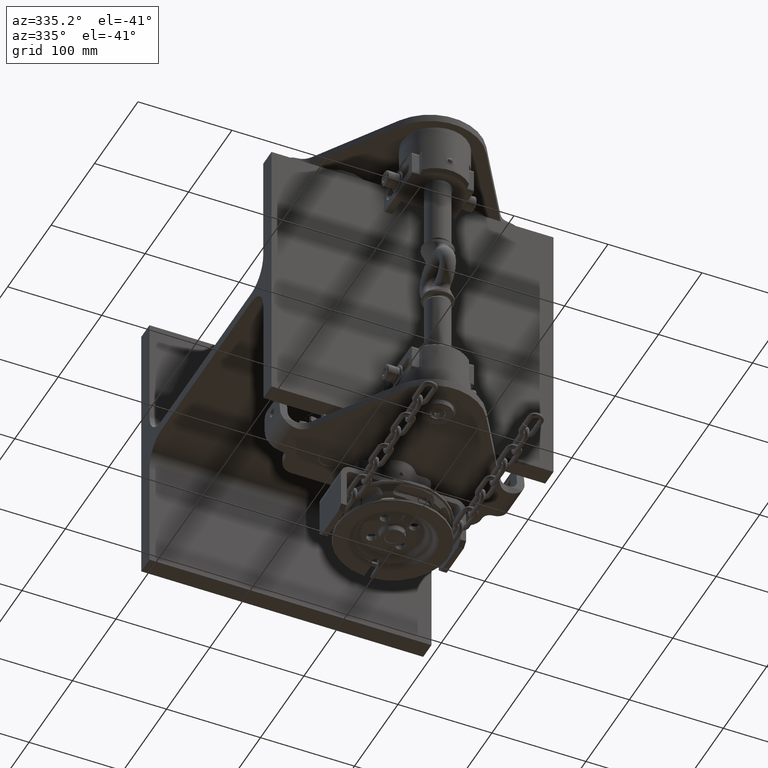
[diagram: clean part render]
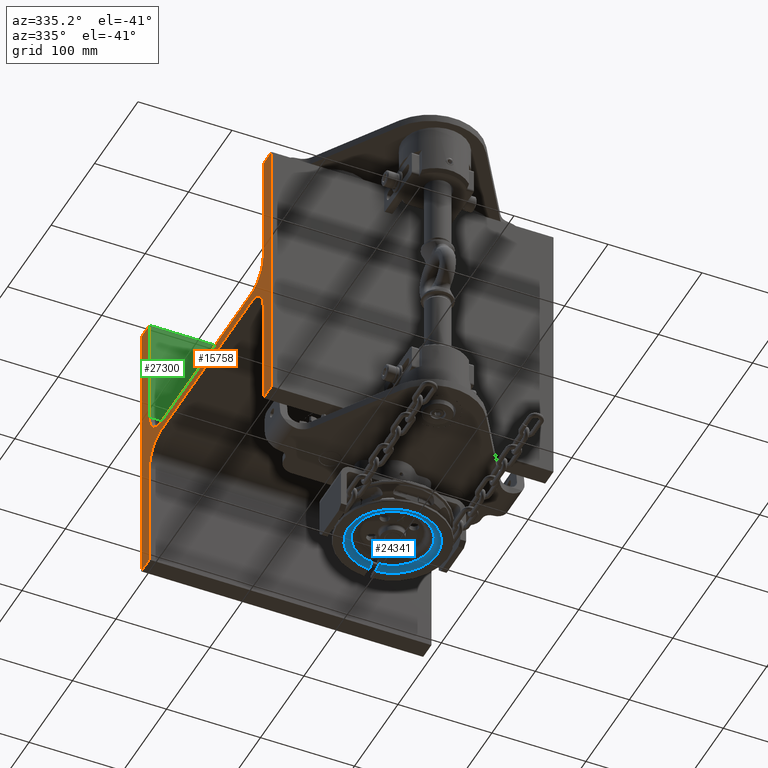
[diagram: same view with three faces highlighted in distinct colors, each labeled with its STEP entity id]
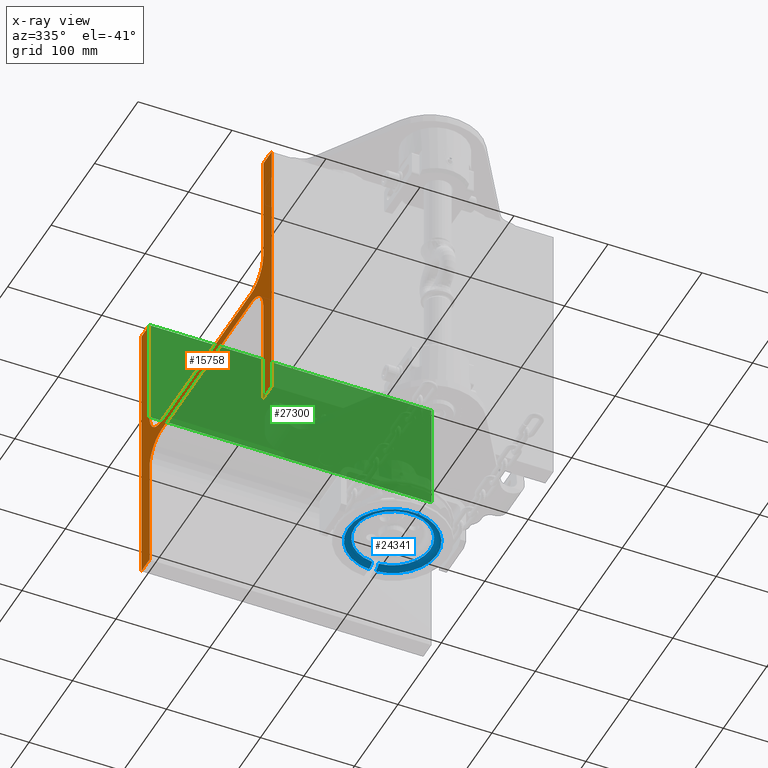
[diagram: x-ray of the same camera — body ghosted, the three highlighted faces saturated]
A machine part, auxiliary view with three faces highlighted in distinct colors.
The next image is the same camera in x-ray (body ghosted, the three faces saturated) — at least one of them is partly hidden behind the body in this view.
Their STEP definitions:

[orange] entity #15758 — the highlighted planar face has unit normal (1, -0, -0).
#482 = EDGE_CURVE ( 'NONE', #10572, #35718, #13258, .T. ) ;
#1298 = ORIENTED_EDGE ( 'NONE', *, *, #38999, .F. ) ;
#1343 = ORIENTED_EDGE ( 'NONE', *, *, #36289, .F. ) ;
#2406 = CARTESIAN_POINT ( 'NONE',  ( -150.0000000000000300, -103.9999999999986200, -5.499999999999627000 ) ) ;
#2486 = VERTEX_POINT ( 'NONE', #16845 ) ;
#2632 = CARTESIAN_POINT ( 'NONE',  ( -150.0000000000000900, -149.9999999999994000, -149.9999999999994000 ) ) ;
#3218 = VECTOR ( 'NONE', #12785, 1000.000000000000000 ) ;
#3504 = EDGE_CURVE ( 'NONE', #15428, #32175, #5290, .T. ) ;
#3967 = CARTESIAN_POINT ( 'NONE',  ( -149.9999999999999700, 131.0000000000017900, 149.9999999999993700 ) ) ;
#4031 = AXIS2_PLACEMENT_3D ( 'NONE', #26444, #14093, #42391 ) ;
#4104 = LINE ( 'NONE', #29744, #33679 ) ;
#4124 = EDGE_CURVE ( 'NONE', #29044, #29897, #42347, .T. ) ;
#4298 = VECTOR ( 'NONE', #7662, 1000.000000000000000 ) ;
#5222 = ORIENTED_EDGE ( 'NONE', *, *, #3504, .T. ) ;
#5290 = LINE ( 'NONE', #47078, #26010 ) ;
#5926 = EDGE_CURVE ( 'NONE', #45658, #29897, #33301, .T. ) ;
#6052 = DIRECTION ( 'NONE',  ( 3.330669073875467200E-016, 4.187093642028518100E-015, 1.000000000000000000 ) ) ;
#6309 = CARTESIAN_POINT ( 'NONE',  ( -149.9999999999999400, 131.0000000000011700, 32.49999999999940300 ) ) ;
#6383 = CARTESIAN_POINT ( 'NONE',  ( -149.9999999999999700, 150.0000000000017900, 149.9999999999992900 ) ) ;
#6445 = FACE_OUTER_BOUND ( 'NONE', #52363, .T. ) ;
#7247 = EDGE_CURVE ( 'NONE', #20112, #31456, #25494, .T. ) ;
#7352 = VERTEX_POINT ( 'NONE', #6383 ) ;
#7402 = DIRECTION ( 'NONE',  ( 3.328978489157237800E-017, 1.000000000000000000, -5.481442494871835100E-015 ) ) ;
#7573 = PLANE ( 'NONE',  #45435 ) ;
#7662 = DIRECTION ( 'NONE',  ( 3.330669073875468100E-016, 5.057445236741889500E-015, 1.000000000000000000 ) ) ;
#7976 = DIRECTION ( 'NONE',  ( 3.328978489157287100E-017, 1.000000000000000000, -4.020622725628217800E-015 ) ) ;
#8247 = DIRECTION ( 'NONE',  ( 1.000000000000000000, -2.645435875969833700E-017, -3.330669073875466700E-016 ) ) ;
#8410 = CARTESIAN_POINT ( 'NONE',  ( -150.0000000000000300, -103.9999999999985900, 32.50000000000036900 ) ) ;
#8526 = VECTOR ( 'NONE', #13096, 1000.000000000000000 ) ;
#8618 = ORIENTED_EDGE ( 'NONE', *, *, #482, .F. ) ;
#8745 = DIRECTION ( 'NONE',  ( -3.330669073875467600E-016, -3.905884120774306700E-015, -1.000000000000000000 ) ) ;
#8972 = ORIENTED_EDGE ( 'NONE', *, *, #16219, .T. ) ;
#10572 = VERTEX_POINT ( 'NONE', #51649 ) ;
#10745 = VECTOR ( 'NONE', #26875, 1000.000000000000000 ) ;
#10749 = AXIS2_PLACEMENT_3D ( 'NONE', #23729, #11550, #39789 ) ;
#11320 = LINE ( 'NONE', #47808, #41008 ) ;
#11550 = DIRECTION ( 'NONE',  ( -1.000000000000000000, 2.645435875969847300E-017, 3.677613769070833000E-016 ) ) ;
#11565 = CARTESIAN_POINT ( 'NONE',  ( -150.0000000000000900, 131.0000000000004500, -150.0000000000005400 ) ) ;
#12120 = EDGE_CURVE ( 'NONE', #45281, #10572, #37697, .T. ) ;
#12785 = DIRECTION ( 'NONE',  ( -3.330669073875467600E-016, -3.905884120774306700E-015, -1.000000000000000000 ) ) ;
#12852 = EDGE_CURVE ( 'NONE', #7352, #47647, #23993, .T. ) ;
#13096 = DIRECTION ( 'NONE',  ( 3.328978489157237800E-017, 1.000000000000000000, -5.481442494871842200E-015 ) ) ;
#13147 = CARTESIAN_POINT ( 'NONE',  ( -149.9999999999999700, -149.9999999999981500, 150.0000000000005700 ) ) ;
#13258 = CIRCLE ( 'NONE', #22796, 26.99999999999999600 ) ;
#14093 = DIRECTION ( 'NONE',  ( -1.000000000000000000, 2.645435875969847300E-017, 3.677613769070833000E-016 ) ) ;
#14352 = ORIENTED_EDGE ( 'NONE', *, *, #46359, .T. ) ;
#14613 = CARTESIAN_POINT ( 'NONE',  ( -150.0000000000000300, -103.9999999999987100, 5.500000000000366800 ) ) ;
#15157 = VECTOR ( 'NONE', #7976, 1000.000000000000000 ) ;
#15428 = VERTEX_POINT ( 'NONE', #49811 ) ;
#15758 = ADVANCED_FACE ( 'NONE', ( #6445 ), #7573, .F. ) ;
#16219 = EDGE_CURVE ( 'NONE', #2486, #7352, #51807, .T. ) ;
#16845 = CARTESIAN_POINT ( 'NONE',  ( -149.9999999999999700, 131.0000000000017900, 149.9999999999993700 ) ) ;
#17581 = ORIENTED_EDGE ( 'NONE', *, *, #7247, .T. ) ;
#17677 = LINE ( 'NONE', #18469, #10745 ) ;
#17678 = CARTESIAN_POINT ( 'NONE',  ( -150.0000000000000900, -130.9999999999993500, -149.9999999999995200 ) ) ;
#18061 = ORIENTED_EDGE ( 'NONE', *, *, #4124, .T. ) ;
#18469 = CARTESIAN_POINT ( 'NONE',  ( -150.0000000000000900, -149.9999999999994000, -149.9999999999994000 ) ) ;
#18486 = CARTESIAN_POINT ( 'NONE',  ( -149.9999999999999400, 131.0000000000011700, 32.49999999999940300 ) ) ;
#19016 = ORIENTED_EDGE ( 'NONE', *, *, #39155, .F. ) ;
#19607 = CARTESIAN_POINT ( 'NONE',  ( -150.0000000000000300, -130.9999999999985800, 32.50000000000048300 ) ) ;
#19930 = CIRCLE ( 'NONE', #23108, 27.00000000000000400 ) ;
#20112 = VERTEX_POINT ( 'NONE', #2632 ) ;
#21751 = LINE ( 'NONE', #29152, #8526 ) ;
#22166 = EDGE_CURVE ( 'NONE', #31456, #15428, #21751, .T. ) ;
#22796 = AXIS2_PLACEMENT_3D ( 'NONE', #28573, #32633, #29797 ) ;
#23108 = AXIS2_PLACEMENT_3D ( 'NONE', #23117, #23652, #35615 ) ;
#23117 = CARTESIAN_POINT ( 'NONE',  ( -150.0000000000000300, -103.9999999999985900, 32.50000000000036900 ) ) ;
#23316 = CARTESIAN_POINT ( 'NONE',  ( -150.0000000000000900, -130.9999999999993500, -149.9999999999995200 ) ) ;
#23652 = DIRECTION ( 'NONE',  ( 1.000000000000000000, -2.645435875969847300E-017, -3.677613769070833000E-016 ) ) ;
#23655 = CARTESIAN_POINT ( 'NONE',  ( -150.0000000000000300, -103.9999999999987100, 5.500000000000366800 ) ) ;
#23729 = CARTESIAN_POINT ( 'NONE',  ( -149.9999999999999400, 104.0000000000012100, 32.49999999999953800 ) ) ;
#23993 = LINE ( 'NONE', #49083, #3218 ) ;
#24035 = EDGE_CURVE ( 'NONE', #43772, #43268, #11320, .T. ) ;
#24694 = ORIENTED_EDGE ( 'NONE', *, *, #39935, .F. ) ;
#25494 = LINE ( 'NONE', #50331, #31149 ) ;
#26010 = VECTOR ( 'NONE', #50962, 1000.000000000000000 ) ;
#26444 = CARTESIAN_POINT ( 'NONE',  ( -150.0000000000000300, 104.0000000000009200, -32.50000000000046200 ) ) ;
#26875 = DIRECTION ( 'NONE',  ( 3.328978489157335800E-017, 1.000000000000000000, -2.559802956384596600E-015 ) ) ;
#27405 = EDGE_CURVE ( 'NONE', #32175, #29044, #19930, .T. ) ;
#27539 = DIRECTION ( 'NONE',  ( 3.330669073875468100E-016, 4.850754780029759900E-015, 1.000000000000000000 ) ) ;
#28573 = CARTESIAN_POINT ( 'NONE',  ( -150.0000000000000300, -103.9999999999987600, -32.49999999999961600 ) ) ;
#29044 = VERTEX_POINT ( 'NONE', #14613 ) ;
#29152 = CARTESIAN_POINT ( 'NONE',  ( -149.9999999999999700, -149.9999999999981500, 150.0000000000005700 ) ) ;
#29428 = VERTEX_POINT ( 'NONE', #38050 ) ;
#29744 = CARTESIAN_POINT ( 'NONE',  ( -150.0000000000000300, -103.9999999999986200, -5.499999999999634100 ) ) ;
#29797 = DIRECTION ( 'NONE',  ( 0.0000000000000000000, 4.111937128241321400E-015, 1.000000000000000000 ) ) ;
#29897 = VERTEX_POINT ( 'NONE', #41481 ) ;
#30333 = ORIENTED_EDGE ( 'NONE', *, *, #12120, .F. ) ;
#31110 = LINE ( 'NONE', #11565, #41273 ) ;
#31149 = VECTOR ( 'NONE', #6052, 1000.000000000000000 ) ;
#31456 = VERTEX_POINT ( 'NONE', #13147 ) ;
#32175 = VERTEX_POINT ( 'NONE', #19607 ) ;
#32633 = DIRECTION ( 'NONE',  ( -1.000000000000000000, 2.645435875969847300E-017, 3.677613769070833000E-016 ) ) ;
#32918 = CARTESIAN_POINT ( 'NONE',  ( -150.0000000000000900, 131.0000000000004500, -150.0000000000005400 ) ) ;
#33301 = CIRCLE ( 'NONE', #10749, 26.99999999999998200 ) ;
#33679 = VECTOR ( 'NONE', #37521, 1000.000000000000000 ) ;
#35352 = ORIENTED_EDGE ( 'NONE', *, *, #22166, .T. ) ;
#35615 = DIRECTION ( 'NONE',  ( 0.0000000000000000000, -4.111937128241319800E-015, -1.000000000000000000 ) ) ;
#35718 = VERTEX_POINT ( 'NONE', #2406 ) ;
#36289 = EDGE_CURVE ( 'NONE', #29428, #43772, #47475, .T. ) ;
#36960 = ORIENTED_EDGE ( 'NONE', *, *, #27405, .T. ) ;
#37456 = CARTESIAN_POINT ( 'NONE',  ( -150.0000000000000300, 131.0000000000009400, -32.50000000000057600 ) ) ;
#37521 = DIRECTION ( 'NONE',  ( 3.328978489157287100E-017, 1.000000000000000000, -4.020622725628217800E-015 ) ) ;
#37697 = LINE ( 'NONE', #23316, #4298 ) ;
#38050 = CARTESIAN_POINT ( 'NONE',  ( -150.0000000000000300, 104.0000000000010400, -5.500000000000469000 ) ) ;
#38229 = LINE ( 'NONE', #6309, #49071 ) ;
#38999 = EDGE_CURVE ( 'NONE', #35718, #29428, #4104, .T. ) ;
#39155 = EDGE_CURVE ( 'NONE', #43268, #47647, #31110, .T. ) ;
#39789 = DIRECTION ( 'NONE',  ( 0.0000000000000000000, 4.111937128241323000E-015, 1.000000000000000000 ) ) ;
#39790 = DIRECTION ( 'NONE',  ( -3.330669073875467600E-016, -3.905884120774306700E-015, -1.000000000000000000 ) ) ;
#39935 = EDGE_CURVE ( 'NONE', #20112, #45281, #17677, .T. ) ;
#41008 = VECTOR ( 'NONE', #39790, 1000.000000000000000 ) ;
#41273 = VECTOR ( 'NONE', #7402, 1000.000000000000000 ) ;
#41481 = CARTESIAN_POINT ( 'NONE',  ( -150.0000000000000300, 104.0000000000010400, 5.499999999999540800 ) ) ;
#42347 = LINE ( 'NONE', #23655, #15157 ) ;
#42391 = DIRECTION ( 'NONE',  ( 0.0000000000000000000, 4.111937128241318300E-015, 1.000000000000000000 ) ) ;
#43246 = ORIENTED_EDGE ( 'NONE', *, *, #24035, .F. ) ;
#43268 = VERTEX_POINT ( 'NONE', #32918 ) ;
#43772 = VERTEX_POINT ( 'NONE', #37456 ) ;
#44192 = DIRECTION ( 'NONE',  ( 3.328978489157383800E-017, 1.000000000000000000, -1.098983187140966300E-015 ) ) ;
#45281 = VERTEX_POINT ( 'NONE', #17678 ) ;
#45435 = AXIS2_PLACEMENT_3D ( 'NONE', #8410, #8247, #8745 ) ;
#45658 = VERTEX_POINT ( 'NONE', #18486 ) ;
#46359 = EDGE_CURVE ( 'NONE', #45658, #2486, #38229, .T. ) ;
#46515 = ORIENTED_EDGE ( 'NONE', *, *, #5926, .F. ) ;
#47078 = CARTESIAN_POINT ( 'NONE',  ( -149.9999999999999700, -130.9999999999981200, 150.0000000000004000 ) ) ;
#47475 = CIRCLE ( 'NONE', #4031, 27.00000000000001400 ) ;
#47647 = VERTEX_POINT ( 'NONE', #49451 ) ;
#47808 = CARTESIAN_POINT ( 'NONE',  ( -150.0000000000000300, 131.0000000000009400, -32.50000000000057600 ) ) ;
#48022 = VECTOR ( 'NONE', #44192, 1000.000000000000000 ) ;
#49071 = VECTOR ( 'NONE', #27539, 1000.000000000000000 ) ;
#49083 = CARTESIAN_POINT ( 'NONE',  ( -149.9999999999999700, 150.0000000000017900, 149.9999999999992900 ) ) ;
#49451 = CARTESIAN_POINT ( 'NONE',  ( -150.0000000000000900, 150.0000000000005700, -150.0000000000007100 ) ) ;
#49811 = CARTESIAN_POINT ( 'NONE',  ( -149.9999999999999700, -130.9999999999981200, 150.0000000000004000 ) ) ;
#49821 = ORIENTED_EDGE ( 'NONE', *, *, #12852, .T. ) ;
#50331 = CARTESIAN_POINT ( 'NONE',  ( -150.0000000000000900, -149.9999999999994000, -149.9999999999994000 ) ) ;
#50962 = DIRECTION ( 'NONE',  ( -3.330669073875467600E-016, -4.053520161282971400E-015, -1.000000000000000000 ) ) ;
#51649 = CARTESIAN_POINT ( 'NONE',  ( -150.0000000000000300, -130.9999999999987200, -32.49999999999947400 ) ) ;
#51807 = LINE ( 'NONE', #3967, #48022 ) ;
#52363 = EDGE_LOOP ( 'NONE', ( #5222, #36960, #18061, #46515, #14352, #8972, #49821, #19016, #43246, #1343, #1298, #8618, #30333, #24694, #17581, #35352 ) ) ;

[blue] entity #24341 — the highlighted toroidal blend (fillet) surface has major radius 47.2 mm and minor (blend) radius 8.5 mm.
#687 = ORIENTED_EDGE ( 'NONE', *, *, #9212, .F. ) ;
#711 = CARTESIAN_POINT ( 'NONE',  ( -3.500000000000095500, -63.55256661590149000, -254.8431586488988500 ) ) ;
#843 = ORIENTED_EDGE ( 'NONE', *, *, #19633, .T. ) ;
#1923 = VERTEX_POINT ( 'NONE', #41433 ) ;
#1948 = CARTESIAN_POINT ( 'NONE',  ( 3.499076907897855600, -64.50037905583111800, -253.6315557212968800 ) ) ;
#2367 = AXIS2_PLACEMENT_3D ( 'NONE', #44049, #48299, #23706 ) ;
#4282 = VERTEX_POINT ( 'NONE', #14508 ) ;
#4705 = CARTESIAN_POINT ( 'NONE',  ( -3.499683972922529300, -64.47395218147639200, -253.6721492470563200 ) ) ;
#5872 = B_SPLINE_CURVE_WITH_KNOTS ( 'NONE', 3,
 ( #6595, #10601, #27471, #23625, #7455, #11780, #35592, #19730, #47709, #47528, #48042, #7621, #43959, #23804 ),
 .UNSPECIFIED., .F., .F.,
 ( 4, 2, 2, 2, 2, 2, 4 ),
 ( 0.04616971339272701900, 0.04823979679447701300, 0.04927483849535201800, 0.05030988019622702900, 0.05237996359797694700, 0.05341500529885197200, 0.05445004699972700500 ),
 .UNSPECIFIED. ) ;
#6075 = ORIENTED_EDGE ( 'NONE', *, *, #49565, .F. ) ;
#6479 = DIRECTION ( 'NONE',  ( 1.000000000000000000, 0.0000000000000000000, 0.0000000000000000000 ) ) ;
#6595 = CARTESIAN_POINT ( 'NONE',  ( 3.500000000000022200, -57.34994582539867700, -257.5000000000009700 ) ) ;
#7245 = CARTESIAN_POINT ( 'NONE',  ( 3.500000000000022600, -64.42000000000106800, -253.7526242896049400 ) ) ;
#7329 = VERTEX_POINT ( 'NONE', #34677 ) ;
#7455 = CARTESIAN_POINT ( 'NONE',  ( 3.500000000000022600, -60.07749087898617500, -257.0605867734956900 ) ) ;
#7527 = VERTEX_POINT ( 'NONE', #39469 ) ;
#7621 = CARTESIAN_POINT ( 'NONE',  ( 3.500000000000023100, -64.01546232907607200, -254.3128481039636000 ) ) ;
#9212 = EDGE_CURVE ( 'NONE', #38083, #7527, #11409, .T. ) ;
#10601 = CARTESIAN_POINT ( 'NONE',  ( 3.500000000000023100, -58.04424905100517400, -257.5000000000009700 ) ) ;
#11409 = B_SPLINE_CURVE_WITH_KNOTS ( 'NONE', 3,
 ( #16298, #4705, #16109, #24758 ),
 .UNSPECIFIED., .F., .F.,
 ( 4, 4 ),
 ( 2.386497451006770800E-007, 0.0001455632620633271000 ),
 .UNSPECIFIED. ) ;
#11780 = CARTESIAN_POINT ( 'NONE',  ( 3.500000000000022200, -60.72428097142724800, -256.8134767228720000 ) ) ;
#12814 = CARTESIAN_POINT ( 'NONE',  ( -3.500000000000095900, -59.07662031535290500, -257.3309514932283800 ) ) ;
#13363 = ORIENTED_EDGE ( 'NONE', *, *, #44625, .F. ) ;
#14508 = CARTESIAN_POINT ( 'NONE',  ( 3.500000000000022600, -64.42000000000106800, -253.7526242896049400 ) ) ;
#14644 = DIRECTION ( 'NONE',  ( 1.000000000000000000, -3.868621879920028100E-031, -1.033420295689366700E-016 ) ) ;
#16109 = CARTESIAN_POINT ( 'NONE',  ( -3.500000000000092800, -64.44715623401070600, -253.7125104328451900 ) ) ;
#16298 = CARTESIAN_POINT ( 'NONE',  ( -3.499076907897927600, -64.50037905583111800, -253.6315557212968800 ) ) ;
#16385 = CARTESIAN_POINT ( 'NONE',  ( -3.500000000000094600, -64.42000000000106800, -253.7526242896044800 ) ) ;
#17028 = CIRCLE ( 'NONE', #2367, 40.07267991454521200 ) ;
#17249 = CARTESIAN_POINT ( 'NONE',  ( -3.500000000000095900, -63.30679202045047300, -255.0916553128204800 ) ) ;
#18055 = CARTESIAN_POINT ( 'NONE',  ( -3.554840142189590200E-014, -104.4200000000010200, -249.0000000000007400 ) ) ;
#19002 = CARTESIAN_POINT ( 'NONE',  ( 3.500000000000022600, -64.44715623401054900, -253.7125104328454200 ) ) ;
#19633 = EDGE_CURVE ( 'NONE', #38083, #20948, #17028, .T. ) ;
#19720 = AXIS2_PLACEMENT_3D ( 'NONE', #35124, #22975, #6479 ) ;
#19730 = CARTESIAN_POINT ( 'NONE',  ( 3.500000000000022200, -61.95422297117858100, -256.1870559304900900 ) ) ;
#20948 = VERTEX_POINT ( 'NONE', #1948 ) ;
#20956 = CARTESIAN_POINT ( 'NONE',  ( -3.500000000000094600, -64.01215416404025400, -254.3170073712980800 ) ) ;
#21616 = AXIS2_PLACEMENT_3D ( 'NONE', #18055, #46337, #14644 ) ;
#22382 = EDGE_LOOP ( 'NONE', ( #37678, #687, #843, #6075, #13363, #51061 ) ) ;
#22975 = DIRECTION ( 'NONE',  ( 1.033420295689366700E-016, 3.743512582496142400E-015, 1.000000000000000000 ) ) ;
#23042 = CARTESIAN_POINT ( 'NONE',  ( 3.499076907897855600, -64.50037905583111800, -253.6315557212968800 ) ) ;
#23625 = CARTESIAN_POINT ( 'NONE',  ( 3.500000000000022200, -59.74260333155668000, -257.1657040657993300 ) ) ;
#23706 = DIRECTION ( 'NONE',  ( 1.000000000000000000, 0.0000000000000000000, 0.0000000000000000000 ) ) ;
#23804 = CARTESIAN_POINT ( 'NONE',  ( 3.500000000000022600, -64.42000000000106800, -253.7526242896049400 ) ) ;
#24341 = ADVANCED_FACE ( 'NONE', ( #32649 ), #36485, .T. ) ;
#24758 = CARTESIAN_POINT ( 'NONE',  ( -3.500000000000094600, -64.42000000000106800, -253.7526242896044800 ) ) ;
#25352 = CARTESIAN_POINT ( 'NONE',  ( -3.500000000000095500, -61.96614862193447900, -256.1803050707743500 ) ) ;
#26054 = CIRCLE ( 'NONE', #19720, 47.20000000000007400 ) ;
#27471 = CARTESIAN_POINT ( 'NONE',  ( 3.500000000000022200, -58.72922600105678700, -257.4166465071069800 ) ) ;
#28306 = CARTESIAN_POINT ( 'NONE',  ( -3.499076907897927600, -64.50037905583111800, -253.6315557212968800 ) ) ;
#29216 = CARTESIAN_POINT ( 'NONE',  ( -3.500000000000095000, -60.08450664153146900, -257.0803666709256300 ) ) ;
#29386 = CARTESIAN_POINT ( 'NONE',  ( -3.500000000000095500, -62.53379076566705000, -255.7838082451505100 ) ) ;
#30617 = EDGE_CURVE ( 'NONE', #1923, #7329, #26054, .T. ) ;
#32582 = CARTESIAN_POINT ( 'NONE',  ( -3.500000000000095500, -64.22466597065577800, -254.0411621358565200 ) ) ;
#32649 = FACE_OUTER_BOUND ( 'NONE', #22382, .T. ) ;
#32803 = EDGE_CURVE ( 'NONE', #7527, #1923, #35296, .T. ) ;
#33085 = CARTESIAN_POINT ( 'NONE',  ( -3.500000000000095500, -58.04036202343470300, -257.4791813815948000 ) ) ;
#34677 = CARTESIAN_POINT ( 'NONE',  ( 3.500000000000022200, -57.34994582539867700, -257.5000000000009700 ) ) ;
#35124 = CARTESIAN_POINT ( 'NONE',  ( -3.642680867323186600E-014, -104.4200000000011200, -257.5000000000008000 ) ) ;
#35296 = B_SPLINE_CURVE_WITH_KNOTS ( 'NONE', 3,
 ( #16385, #32582, #20956, #711, #17249, #29386, #25352, #37517, #29216, #12814, #49639, #33085, #45700, #49289 ),
 .UNSPECIFIED., .F., .F.,
 ( 4, 2, 2, 2, 2, 2, 4 ),
 ( 0.05199405646560789600, 0.05302920369562363900, 0.05406435092563938900, 0.05613464538567088100, 0.05820493984570236600, 0.05924008707571812300, 0.06027523430573388000 ),
 .UNSPECIFIED. ) ;
#35592 = CARTESIAN_POINT ( 'NONE',  ( 3.500000000000022600, -61.03855437364320800, -256.6709725770090200 ) ) ;
#36485 = TOROIDAL_SURFACE ( 'NONE', #21616, 47.20000000000007400, 8.499999999999973400 ) ;
#37517 = CARTESIAN_POINT ( 'NONE',  ( -3.500000000000095500, -60.72993626876729700, -256.8345177126888600 ) ) ;
#37678 = ORIENTED_EDGE ( 'NONE', *, *, #32803, .F. ) ;
#38083 = VERTEX_POINT ( 'NONE', #28306 ) ;
#38429 = B_SPLINE_CURVE_WITH_KNOTS ( 'NONE', 3,
 ( #7245, #19002, #38932, #23042 ),
 .UNSPECIFIED., .F., .F.,
 ( 4, 4 ),
 ( 3.567283918547289600E-007, 0.0001456813407104737700 ),
 .UNSPECIFIED. ) ;
#38932 = CARTESIAN_POINT ( 'NONE',  ( 3.499683972922459100, -64.47395218147632100, -253.6721492470564400 ) ) ;
#39469 = CARTESIAN_POINT ( 'NONE',  ( -3.500000000000094600, -64.42000000000106800, -253.7526242896044800 ) ) ;
#41433 = CARTESIAN_POINT ( 'NONE',  ( -3.500000000000095000, -57.34994582539867700, -257.5000000000009700 ) ) ;
#43959 = CARTESIAN_POINT ( 'NONE',  ( 3.500000000000021800, -64.22653399062078000, -254.0384027883978900 ) ) ;
#44049 = CARTESIAN_POINT ( 'NONE',  ( -3.602703579019625400E-014, -104.4200000000011100, -253.6315557212967100 ) ) ;
#44625 = EDGE_CURVE ( 'NONE', #7329, #4282, #5872, .T. ) ;
#45700 = CARTESIAN_POINT ( 'NONE',  ( -3.500000000000096400, -57.69502171585035200, -257.5000000000009700 ) ) ;
#46337 = DIRECTION ( 'NONE',  ( 1.033420295689366700E-016, 3.743512582496142400E-015, 1.000000000000000000 ) ) ;
#47528 = CARTESIAN_POINT ( 'NONE',  ( 3.500000000000022200, -63.31092087304583800, -255.0877626966734800 ) ) ;
#47709 = CARTESIAN_POINT ( 'NONE',  ( 3.500000000000022200, -62.53346940620793500, -255.7844842160358800 ) ) ;
#48042 = CARTESIAN_POINT ( 'NONE',  ( 3.500000000000021800, -63.55705006803355400, -254.8383915443490100 ) ) ;
#48299 = DIRECTION ( 'NONE',  ( 1.033420295689366700E-016, 3.743512582496142400E-015, 1.000000000000000000 ) ) ;
#49289 = CARTESIAN_POINT ( 'NONE',  ( -3.500000000000095000, -57.34994582539867700, -257.5000000000009700 ) ) ;
#49565 = EDGE_CURVE ( 'NONE', #4282, #20948, #38429, .T. ) ;
#49639 = CARTESIAN_POINT ( 'NONE',  ( -3.500000000000095500, -58.73158573044040800, -257.3947843523333200 ) ) ;
#51061 = ORIENTED_EDGE ( 'NONE', *, *, #30617, .F. ) ;

[green] entity #27300 — the highlighted planar face has unit normal (-0, -1, 0).
#33 = CARTESIAN_POINT ( 'NONE',  ( 149.9999999999999700, 131.0000000000011700, 32.49999999999930400 ) ) ;
#570 = VERTEX_POINT ( 'NONE', #25234 ) ;
#2486 = VERTEX_POINT ( 'NONE', #16845 ) ;
#3383 = VECTOR ( 'NONE', #20003, 1000.000000000000000 ) ;
#6309 = CARTESIAN_POINT ( 'NONE',  ( -149.9999999999999400, 131.0000000000011700, 32.49999999999940300 ) ) ;
#6558 = ORIENTED_EDGE ( 'NONE', *, *, #48700, .T. ) ;
#9055 = CARTESIAN_POINT ( 'NONE',  ( 150.0000000000000300, 131.0000000000017900, 149.9999999999992600 ) ) ;
#10827 = EDGE_CURVE ( 'NONE', #32762, #45658, #45249, .T. ) ;
#13674 = ORIENTED_EDGE ( 'NONE', *, *, #10827, .F. ) ;
#14039 = LINE ( 'NONE', #15414, #3383 ) ;
#14627 = DIRECTION ( 'NONE',  ( 3.330669073875468100E-016, 4.850754780029759900E-015, 1.000000000000000000 ) ) ;
#15414 = CARTESIAN_POINT ( 'NONE',  ( 149.9999999999999700, 131.0000000000011700, 32.49999999999930400 ) ) ;
#16845 = CARTESIAN_POINT ( 'NONE',  ( -149.9999999999999700, 131.0000000000017900, 149.9999999999993700 ) ) ;
#17854 = DIRECTION ( 'NONE',  ( -1.000000000000000000, 2.645435875969847300E-017, 3.677613769070833000E-016 ) ) ;
#18486 = CARTESIAN_POINT ( 'NONE',  ( -149.9999999999999400, 131.0000000000011700, 32.49999999999940300 ) ) ;
#20003 = DIRECTION ( 'NONE',  ( 3.330669073875468100E-016, 4.850754780029759900E-015, 1.000000000000000000 ) ) ;
#21661 = ORIENTED_EDGE ( 'NONE', *, *, #46359, .F. ) ;
#22455 = EDGE_CURVE ( 'NONE', #570, #2486, #50810, .T. ) ;
#24738 = ORIENTED_EDGE ( 'NONE', *, *, #22455, .T. ) ;
#25234 = CARTESIAN_POINT ( 'NONE',  ( 150.0000000000000300, 131.0000000000017900, 149.9999999999992600 ) ) ;
#26562 = DIRECTION ( 'NONE',  ( -1.000000000000000000, 2.645435875969847300E-017, 3.677613769070833000E-016 ) ) ;
#26710 = VECTOR ( 'NONE', #17854, 1000.000000000000000 ) ;
#27300 = ADVANCED_FACE ( 'NONE', ( #28750 ), #42045, .T. ) ;
#27539 = DIRECTION ( 'NONE',  ( 3.330669073875468100E-016, 4.850754780029759900E-015, 1.000000000000000000 ) ) ;
#28750 = FACE_OUTER_BOUND ( 'NONE', #28832, .T. ) ;
#28832 = EDGE_LOOP ( 'NONE', ( #21661, #13674, #6558, #24738 ) ) ;
#30681 = DIRECTION ( 'NONE',  ( -3.328978489157260000E-017, -1.000000000000000000, 4.850754780029759900E-015 ) ) ;
#32762 = VERTEX_POINT ( 'NONE', #33 ) ;
#34191 = AXIS2_PLACEMENT_3D ( 'NONE', #38818, #30681, #14627 ) ;
#38229 = LINE ( 'NONE', #6309, #49071 ) ;
#38818 = CARTESIAN_POINT ( 'NONE',  ( 149.9999999999999700, 131.0000000000011700, 32.49999999999930400 ) ) ;
#42045 = PLANE ( 'NONE',  #34191 ) ;
#42694 = CARTESIAN_POINT ( 'NONE',  ( 149.9999999999999700, 131.0000000000011700, 32.49999999999930400 ) ) ;
#43368 = VECTOR ( 'NONE', #26562, 1000.000000000000000 ) ;
#45249 = LINE ( 'NONE', #42694, #43368 ) ;
#45658 = VERTEX_POINT ( 'NONE', #18486 ) ;
#46359 = EDGE_CURVE ( 'NONE', #45658, #2486, #38229, .T. ) ;
#48700 = EDGE_CURVE ( 'NONE', #32762, #570, #14039, .T. ) ;
#49071 = VECTOR ( 'NONE', #27539, 1000.000000000000000 ) ;
#50810 = LINE ( 'NONE', #9055, #26710 ) ;